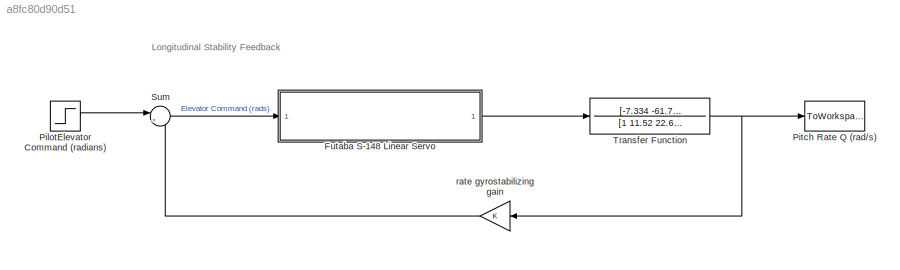
MODEL slx_a8fc80d90d51
KIND model
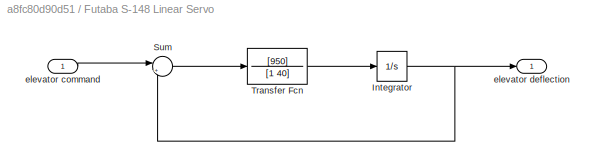
BLOCK [SubSystem] Futaba S-148 Linear Servo
  FunctionWithSeparateData = off
  MaskHideContents = off
  MinAlgLoopOccurrences = off
  Opaque = off
  Ports = [1, 1]
  PropExecContextOutsideSubsystem = off
  RTWSystemCode = Auto
  RequestExecContextInheritance = off
  TreatAsAtomicUnit = on
BLOCK [Integrator] Futaba S-148 Linear Servo/Integrator
  Ports = [1, 1]
BLOCK [Sum] Futaba S-148 Linear Servo/Sum
  IconShape = round
  InputSameDT = off
  Inputs = |+-
  OutDataTypeStr = Inherit: Inherit via internal rule
  Ports = [2, 1]
  SaturateOnIntegerOverflow = off
BLOCK [TransferFcn] Futaba S-148 Linear Servo/Transfer Fcn
  Denominator = [1 40]
  Numerator = [950]
BLOCK [Inport] Futaba S-148 Linear Servo/elevator command
  IconDisplay = Port number
BLOCK [Outport] Futaba S-148 Linear Servo/elevator deflection
  IconDisplay = Port number
BLOCK [Step] PilotElevator Command (radians)
  After = Step_CMD
  SampleTime = 0
BLOCK [ToWorkspace] Pitch Rate Q (rad//s)
  MaxDataPoints = inf
  Ports = [1]
  SampleTime = -1
  SaveFormat = Timeseries
  VariableName = simout
BLOCK [Sum] Sum
  IconShape = round
  InputSameDT = off
  Inputs = |+-
  OutDataTypeStr = Inherit: Inherit via internal rule
  Ports = [2, 1]
  SaturateOnIntegerOverflow = off
BLOCK [TransferFcn] Transfer Function
  Denominator = [1 11.52 22.63]
  Numerator = [-7.334 -61.79]
BLOCK [Gain] rate gyrostabilizing gain
  Gain = K
  OutDataTypeStr = Inherit: Inherit via internal rule
  ParamDataTypeStr = Inherit: Inherit via internal rule
  SaturateOnIntegerOverflow = off
ANNOTATION (root): Longitudinal Stability Feedback
NET Futaba S-148 Linear Servo/Integrator:1 -> Futaba S-148 Linear Servo/Sum:2, Futaba S-148 Linear Servo/elevator deflection:1
LINE Futaba S-148 Linear Servo/Sum:1 -> Futaba S-148 Linear Servo/Transfer Fcn:1
LINE Futaba S-148 Linear Servo/Transfer Fcn:1 -> Futaba S-148 Linear Servo/Integrator:1
LINE Futaba S-148 Linear Servo/elevator command:1 -> Futaba S-148 Linear Servo/Sum:1
LINE Futaba S-148 Linear Servo:1 -> Transfer Function:1
LINE PilotElevator Command (radians):1 -> Sum:1
LINE Sum:1 -> Futaba S-148 Linear Servo:1
NET Transfer Function:1 -> Pitch Rate Q (rad//s):1, rate gyrostabilizing gain:1
LINE rate gyrostabilizing gain:1 -> Sum:2
note: NET lines group one-source signal fan-out (src -> all destinations, sorted); 1:1 wires keep LINE
